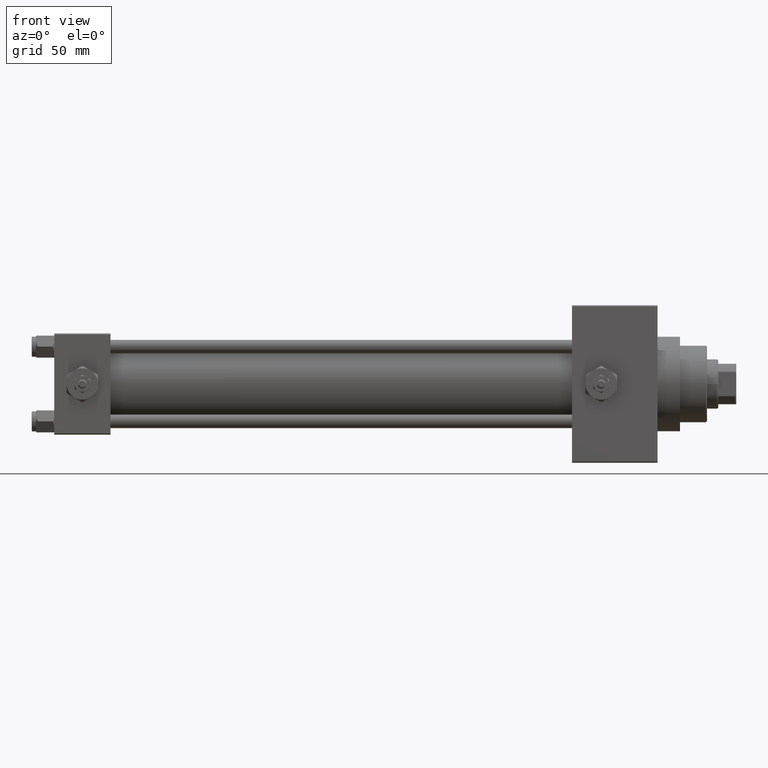
[diagram: clean part render]
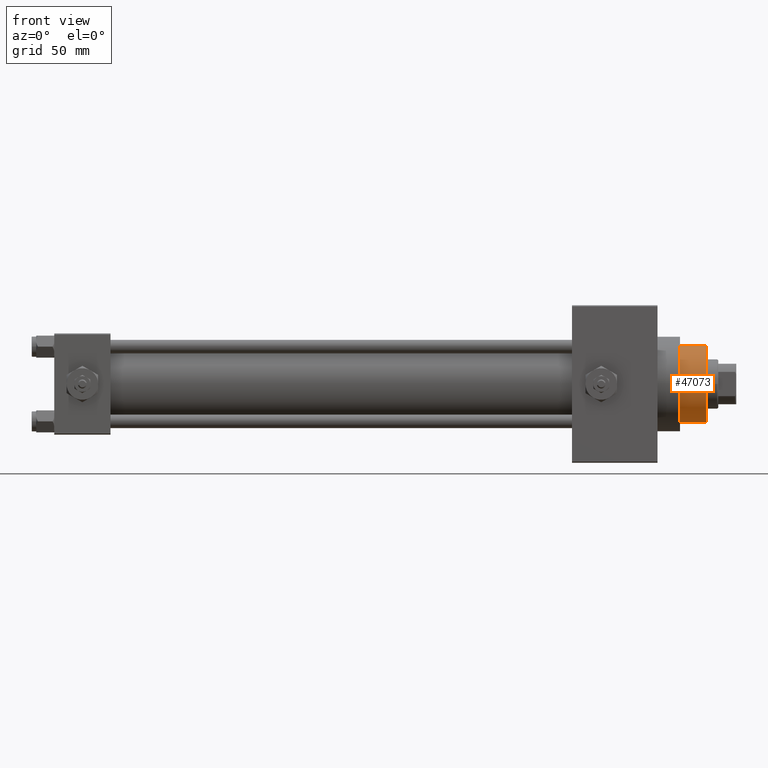
[diagram: same view with one face highlighted and labeled with its STEP entity id]
A machine part, front view. The second image highlights one B-rep face of the part: STEP entity #47073.
In plain terms, the highlighted cylindrical surface (partial cylindrical patch) has radius 17 mm, axis along (-1, 0, 0).
Its self-contained STEP definition (entity closure, byte-faithful):
#472 = CARTESIAN_POINT ( 'NONE',  ( -17.00000000000000000, 0.000000000000000000, 54.76000000000001222 ) ) ;
#1818 = DIRECTION ( 'NONE',  ( -0.000000000000000000, -0.000000000000000000, -1.000000000000000000 ) ) ;
#4015 = AXIS2_PLACEMENT_3D ( 'NONE', #31917, #12321, #20510 ) ;
#5302 = EDGE_CURVE ( 'NONE', #6018, #39783, #29196, .T. ) ;
#5538 = CARTESIAN_POINT ( 'NONE',  ( 0.000000000000000000, 0.000000000000000000, 55.26000000000000512 ) ) ;
#5640 = CIRCLE ( 'NONE', #4015, 17.00000000000000000 ) ;
#6018 = VERTEX_POINT ( 'NONE', #44236 ) ;
#8217 = CARTESIAN_POINT ( 'NONE',  ( -17.00000000000000000, 0.000000000000000000, 55.26000000000000512 ) ) ;
#8574 = CARTESIAN_POINT ( 'NONE',  ( -17.00000000000000000, 0.000000000000000000, 43.25999999999999801 ) ) ;
#8773 = CARTESIAN_POINT ( 'NONE',  ( 0.000000000000000000, 0.000000000000000000, 43.25999999999999801 ) ) ;
#9247 = FACE_OUTER_BOUND ( 'NONE', #30545, .T. ) ;
#9386 = EDGE_CURVE ( 'NONE', #39783, #47814, #48129, .T. ) ;
#12321 = DIRECTION ( 'NONE',  ( 0.000000000000000000, 0.000000000000000000, -1.000000000000000000 ) ) ;
#13688 = DIRECTION ( 'NONE',  ( -1.000000000000000000, 0.000000000000000000, 0.000000000000000000 ) ) ;
#14672 = VECTOR ( 'NONE', #18031, 1000.000000000000000 ) ;
#16523 = ORIENTED_EDGE ( 'NONE', *, *, #9386, .T. ) ;
#17269 = AXIS2_PLACEMENT_3D ( 'NONE', #5538, #1818, #13688 ) ;
#18031 = DIRECTION ( 'NONE',  ( -0.000000000000000000, -0.000000000000000000, -1.000000000000000000 ) ) ;
#18627 = ORIENTED_EDGE ( 'NONE', *, *, #21956, .T. ) ;
#19368 = LINE ( 'NONE', #8217, #32187 ) ;
#20510 = DIRECTION ( 'NONE',  ( 1.000000000000000000, 0.000000000000000000, 0.000000000000000000 ) ) ;
#21956 = EDGE_CURVE ( 'NONE', #38388, #6018, #5640, .T. ) ;
#22155 = ORIENTED_EDGE ( 'NONE', *, *, #5302, .T. ) ;
#23847 = DIRECTION ( 'NONE',  ( -0.000000000000000000, -0.000000000000000000, -1.000000000000000000 ) ) ;
#23900 = DIRECTION ( 'NONE',  ( 0.000000000000000000, 0.000000000000000000, 1.000000000000000000 ) ) ;
#28117 = DIRECTION ( 'NONE',  ( 1.000000000000000000, 0.000000000000000000, 0.000000000000000000 ) ) ;
#29196 = LINE ( 'NONE', #47838, #14672 ) ;
#30545 = EDGE_LOOP ( 'NONE', ( #18627, #22155, #16523, #34135 ) ) ;
#31917 = CARTESIAN_POINT ( 'NONE',  ( 0.000000000000000000, 0.000000000000000000, 54.76000000000001222 ) ) ;
#32187 = VECTOR ( 'NONE', #23847, 1000.000000000000000 ) ;
#34135 = ORIENTED_EDGE ( 'NONE', *, *, #42389, .F. ) ;
#38388 = VERTEX_POINT ( 'NONE', #472 ) ;
#38641 = AXIS2_PLACEMENT_3D ( 'NONE', #8773, #23900, #28117 ) ;
#39783 = VERTEX_POINT ( 'NONE', #43242 ) ;
#40262 = CYLINDRICAL_SURFACE ( 'NONE', #17269, 17.00000000000000000 ) ;
#42389 = EDGE_CURVE ( 'NONE', #38388, #47814, #19368, .T. ) ;
#43242 = CARTESIAN_POINT ( 'NONE',  ( 17.00000000000000000, 2.081899558550500280E-15, 43.25999999999999801 ) ) ;
#44236 = CARTESIAN_POINT ( 'NONE',  ( 17.00000000000000000, 2.081899558550500280E-15, 54.76000000000001222 ) ) ;
#47073 = ADVANCED_FACE ( 'NONE', ( #9247 ), #40262, .T. ) ;
#47814 = VERTEX_POINT ( 'NONE', #8574 ) ;
#47838 = CARTESIAN_POINT ( 'NONE',  ( 17.00000000000000000, 2.081899558550500280E-15, 55.26000000000000512 ) ) ;
#48129 = CIRCLE ( 'NONE', #38641, 17.00000000000000000 ) ;